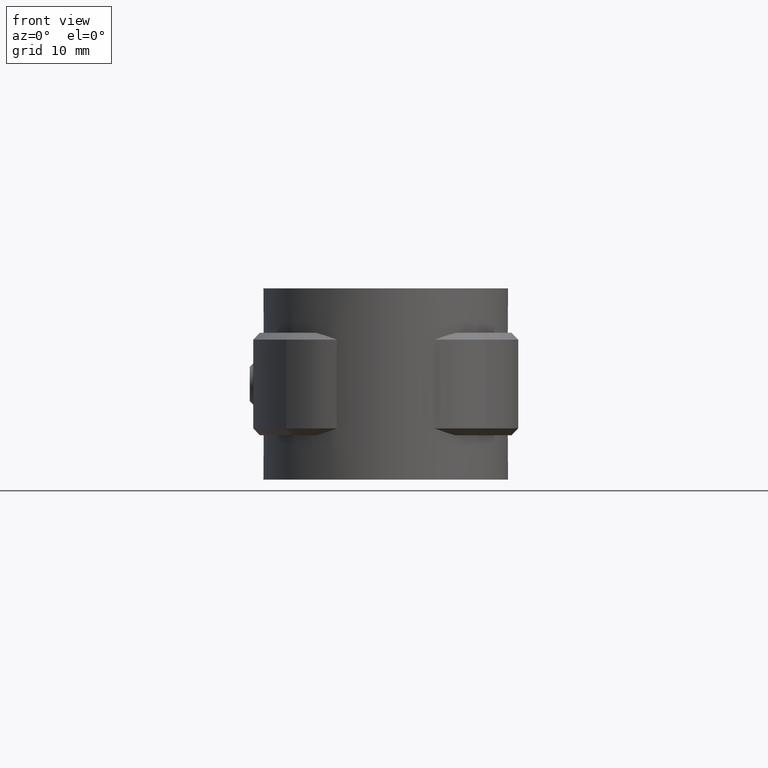
[diagram: clean part render]
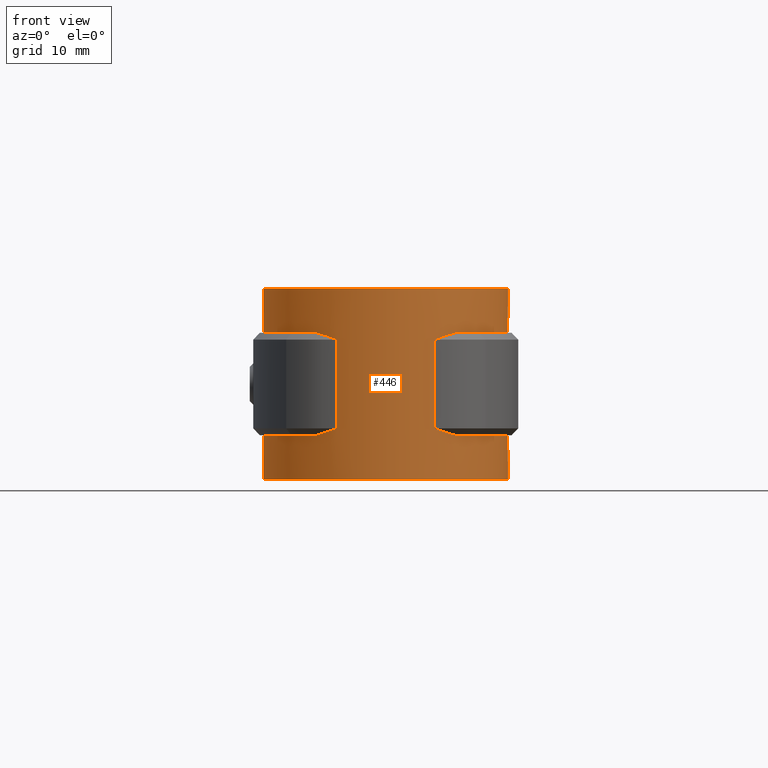
[diagram: same view with one face highlighted and labeled with its STEP entity id]
A machine part, front view. The second image highlights one B-rep face of the part: STEP entity #446.
In plain terms, the highlighted cylindrical surface (partial cylindrical patch) has radius 17.935 mm, axis along (0, 0, 1).
Its self-contained STEP definition (entity closure, byte-faithful):
#446 = ADVANCED_FACE( '', ( #862 ), #863, .T. );
#862 = FACE_OUTER_BOUND( '', #1847, .T. );
#863 = CYLINDRICAL_SURFACE( '', #1848, 17.9350000000000 );
#1847 = EDGE_LOOP( '', ( #3958, #3959, #3960, #3961, #3962, #3963, #3964, #3965, #3966, #3967, #3968, #3969, #3970, #3971, #3972, #3973 ) );
#1848 = AXIS2_PLACEMENT_3D( '', #3974, #3975, #3976 );
#3958 = ORIENTED_EDGE( '', *, *, #6268, .F. );
#3959 = ORIENTED_EDGE( '', *, *, #6269, .T. );
#3960 = ORIENTED_EDGE( '', *, *, #6270, .T. );
#3961 = ORIENTED_EDGE( '', *, *, #6271, .T. );
#3962 = ORIENTED_EDGE( '', *, *, #6259, .T. );
#3963 = ORIENTED_EDGE( '', *, *, #6272, .T. );
#3964 = ORIENTED_EDGE( '', *, *, #6217, .T. );
#3965 = ORIENTED_EDGE( '', *, *, #6210, .F. );
#3966 = ORIENTED_EDGE( '', *, *, #6273, .T. );
#3967 = ORIENTED_EDGE( '', *, *, #6266, .T. );
#3968 = ORIENTED_EDGE( '', *, *, #6274, .T. );
#3969 = ORIENTED_EDGE( '', *, *, #6275, .T. );
#3970 = ORIENTED_EDGE( '', *, *, #6276, .F. );
#3971 = ORIENTED_EDGE( '', *, *, #6212, .F. );
#3972 = ORIENTED_EDGE( '', *, *, #6120, .F. );
#3973 = ORIENTED_EDGE( '', *, *, #6277, .T. );
#3974 = CARTESIAN_POINT( '', ( 0.000000000000000, 0.000000000000000, -26.5000000000000 ) );
#3975 = DIRECTION( '', ( 0.000000000000000, 0.000000000000000, 1.00000000000000 ) );
#3976 = DIRECTION( '', ( 0.000000000000000, -1.00000000000000, 0.000000000000000 ) );
#6120 = EDGE_CURVE( '', #7133, #7135, #7136, .T. );
#6210 = EDGE_CURVE( '', #7298, #7300, #7301, .F. );
#6212 = EDGE_CURVE( '', #7135, #7293, #7303, .F. );
#6217 = EDGE_CURVE( '', #7311, #7300, #7312, .T. );
#6259 = EDGE_CURVE( '', #7373, #7374, #7375, .T. );
#6266 = EDGE_CURVE( '', #7386, #7384, #7387, .T. );
#6268 = EDGE_CURVE( '', #7389, #7390, #7391, .T. );
#6269 = EDGE_CURVE( '', #7389, #7392, #7393, .T. );
#6270 = EDGE_CURVE( '', #7392, #7394, #7395, .F. );
#6271 = EDGE_CURVE( '', #7394, #7373, #7396, .T. );
#6272 = EDGE_CURVE( '', #7374, #7311, #7397, .F. );
#6273 = EDGE_CURVE( '', #7298, #7386, #7398, .T. );
#6274 = EDGE_CURVE( '', #7384, #7399, #7400, .T. );
#6275 = EDGE_CURVE( '', #7399, #7401, #7402, .T. );
#6276 = EDGE_CURVE( '', #7293, #7401, #7403, .T. );
#6277 = EDGE_CURVE( '', #7133, #7390, #7404, .F. );
#7133 = VERTEX_POINT( '', #9410 );
#7135 = VERTEX_POINT( '', #9413 );
#7136 = CIRCLE( '', #9414, 17.9350000000000 );
#7293 = VERTEX_POINT( '', #10200 );
#7298 = VERTEX_POINT( '', #10212 );
#7300 = VERTEX_POINT( '', #10215 );
#7301 = LINE( '', #10216, #10217 );
#7303 = LINE( '', #10220, #10221 );
#7311 = VERTEX_POINT( '', #10231 );
#7312 = CIRCLE( '', #10232, 17.9350000000000 );
#7373 = VERTEX_POINT( '', #10408 );
#7374 = VERTEX_POINT( '', #10409 );
#7375 = CIRCLE( '', #10410, 17.9350000000000 );
#7384 = VERTEX_POINT( '', #10421 );
#7386 = VERTEX_POINT( '', #10423 );
#7387 = B_SPLINE_CURVE_WITH_KNOTS( '', 3, ( #10424, #10425, #10426, #10427 ), .UNSPECIFIED., .F., .F., ( 4, 4 ), ( 2.90404315920742E-017, 0.00357650561878173 ), .UNSPECIFIED. );
#7389 = VERTEX_POINT( '', #10429 );
#7390 = VERTEX_POINT( '', #10430 );
#7391 = CIRCLE( '', #10431, 17.9350000000000 );
#7392 = VERTEX_POINT( '', #10432 );
#7393 = B_SPLINE_CURVE_WITH_KNOTS( '', 3, ( #10433, #10434, #10435, #10436 ), .UNSPECIFIED., .F., .F., ( 4, 4 ), ( 2.88193908422263E-017, 0.00357650561878173 ), .UNSPECIFIED. );
#7394 = VERTEX_POINT( '', #10437 );
#7395 = LINE( '', #10438, #10439 );
#7396 = B_SPLINE_CURVE_WITH_KNOTS( '', 3, ( #10440, #10441, #10442, #10443 ), .UNSPECIFIED., .F., .F., ( 4, 4 ), ( 8.18267427085042E-018, 0.00357650561878174 ), .UNSPECIFIED. );
#7397 = LINE( '', #10444, #10445 );
#7398 = CIRCLE( '', #10446, 17.9350000000000 );
#7399 = VERTEX_POINT( '', #10447 );
#7400 = LINE( '', #10448, #10449 );
#7401 = VERTEX_POINT( '', #10450 );
#7402 = B_SPLINE_CURVE_WITH_KNOTS( '', 3, ( #10451, #10452, #10453, #10454 ), .UNSPECIFIED., .F., .F., ( 4, 4 ), ( 7.80625564189563E-018, 0.00357650561878174 ), .UNSPECIFIED. );
#7403 = CIRCLE( '', #10455, 17.9350000000000 );
#7404 = LINE( '', #10456, #10457 );
#9410 = CARTESIAN_POINT( '', ( 6.10000000000001, 16.8657708095420, -26.5000000000000 ) );
#9413 = CARTESIAN_POINT( '', ( -6.10000000000000, 16.8657708095420, -26.5000000000000 ) );
#9414 = AXIS2_PLACEMENT_3D( '', #12145, #12146, #12147 );
#10200 = CARTESIAN_POINT( '', ( -6.10000000000000, 16.8657708095420, -20.0000000000000 ) );
#10212 = CARTESIAN_POINT( '', ( -6.10000000000000, 16.8657708095420, -5.00000000000000 ) );
#10215 = CARTESIAN_POINT( '', ( -6.10000000000000, 16.8657708095420, 1.50000000000000 ) );
#10216 = CARTESIAN_POINT( '', ( -6.10000000000000, 16.8657708095420, -26.5000000000000 ) );
#10217 = VECTOR( '', #12231, 1000.00000000000 );
#10220 = CARTESIAN_POINT( '', ( -6.10000000000000, 16.8657708095420, -26.5000000000000 ) );
#10221 = VECTOR( '', #12233, 1000.00000000000 );
#10231 = CARTESIAN_POINT( '', ( 6.10000000000001, 16.8657708095420, 1.50000000000000 ) );
#10232 = AXIS2_PLACEMENT_3D( '', #12242, #12243, #12244 );
#10408 = CARTESIAN_POINT( '', ( 10.1735648996629, -14.7703352105613, -5.00000000000000 ) );
#10409 = CARTESIAN_POINT( '', ( 6.10000000000001, 16.8657708095420, -5.00000000000000 ) );
#10410 = AXIS2_PLACEMENT_3D( '', #12298, #12299, #12300 );
#10421 = CARTESIAN_POINT( '', ( -7.17213575351335, -16.4385125158323, -5.99999999999999 ) );
#10423 = CARTESIAN_POINT( '', ( -10.1735648996629, -14.7703352105613, -4.99999999999999 ) );
#10424 = CARTESIAN_POINT( '', ( -10.1735648996629, -14.7703352105613, -4.99999999999999 ) );
#10425 = CARTESIAN_POINT( '', ( -9.20888036943034, -15.4347941098424, -5.25992995844680 ) );
#10426 = CARTESIAN_POINT( '', ( -8.20887606351091, -15.9861819149169, -5.60247274594915 ) );
#10427 = CARTESIAN_POINT( '', ( -7.17213575351334, -16.4385125158323, -6.00000000000000 ) );
#10429 = CARTESIAN_POINT( '', ( 10.1735648996629, -14.7703352105613, -20.0000000000000 ) );
#10430 = CARTESIAN_POINT( '', ( 6.10000000000001, 16.8657708095420, -20.0000000000000 ) );
#10431 = AXIS2_PLACEMENT_3D( '', #12318, #12319, #12320 );
#10432 = CARTESIAN_POINT( '', ( 7.17213575351335, -16.4385125158323, -19.0000000000000 ) );
#10433 = CARTESIAN_POINT( '', ( 10.1735648996629, -14.7703352105613, -20.0000000000000 ) );
#10434 = CARTESIAN_POINT( '', ( 9.20888036943034, -15.4347941098424, -19.7400700415532 ) );
#10435 = CARTESIAN_POINT( '', ( 8.20887606351091, -15.9861819149169, -19.3975272540509 ) );
#10436 = CARTESIAN_POINT( '', ( 7.17213575351334, -16.4385125158323, -19.0000000000000 ) );
#10437 = CARTESIAN_POINT( '', ( 7.17213575351335, -16.4385125158323, -6.00000000000000 ) );
#10438 = CARTESIAN_POINT( '', ( 7.17213575351335, -16.4385125158323, -1.81903103690928E-011 ) );
#10439 = VECTOR( '', #12321, 1000.00000000000 );
#10440 = CARTESIAN_POINT( '', ( 7.17213575351334, -16.4385125158323, -6.00000000000001 ) );
#10441 = CARTESIAN_POINT( '', ( 8.20887606351092, -15.9861819149169, -5.60247274594915 ) );
#10442 = CARTESIAN_POINT( '', ( 9.20888036943034, -15.4347941098424, -5.25992995844682 ) );
#10443 = CARTESIAN_POINT( '', ( 10.1735648996629, -14.7703352105613, -5.00000000000000 ) );
#10444 = CARTESIAN_POINT( '', ( 6.10000000000001, 16.8657708095420, -26.5000000000000 ) );
#10445 = VECTOR( '', #12322, 1000.00000000000 );
#10446 = AXIS2_PLACEMENT_3D( '', #12323, #12324, #12325 );
#10447 = CARTESIAN_POINT( '', ( -7.17213575351335, -16.4385125158323, -19.0000000000000 ) );
#10448 = CARTESIAN_POINT( '', ( -7.17213575351335, -16.4385125158323, -1.81903103690928E-011 ) );
#10449 = VECTOR( '', #12326, 1000.00000000000 );
#10450 = CARTESIAN_POINT( '', ( -10.1735648996629, -14.7703352105613, -20.0000000000000 ) );
#10451 = CARTESIAN_POINT( '', ( -7.17213575351334, -16.4385125158323, -19.0000000000000 ) );
#10452 = CARTESIAN_POINT( '', ( -8.20887606351092, -15.9861819149169, -19.3975272540509 ) );
#10453 = CARTESIAN_POINT( '', ( -9.20888036943034, -15.4347941098424, -19.7400700415532 ) );
#10454 = CARTESIAN_POINT( '', ( -10.1735648996629, -14.7703352105613, -20.0000000000000 ) );
#10455 = AXIS2_PLACEMENT_3D( '', #12327, #12328, #12329 );
#10456 = CARTESIAN_POINT( '', ( 6.10000000000001, 16.8657708095420, -26.5000000000000 ) );
#10457 = VECTOR( '', #12330, 1000.00000000000 );
#12145 = CARTESIAN_POINT( '', ( 0.000000000000000, 0.000000000000000, -26.5000000000000 ) );
#12146 = DIRECTION( '', ( 0.000000000000000, 0.000000000000000, -1.00000000000000 ) );
#12147 = DIRECTION( '', ( -1.00000000000000, 0.000000000000000, 0.000000000000000 ) );
#12231 = DIRECTION( '', ( 0.000000000000000, 0.000000000000000, -1.00000000000000 ) );
#12233 = DIRECTION( '', ( 0.000000000000000, 0.000000000000000, -1.00000000000000 ) );
#12242 = CARTESIAN_POINT( '', ( 0.000000000000000, 0.000000000000000, 1.50000000000000 ) );
#12243 = DIRECTION( '', ( 0.000000000000000, 0.000000000000000, -1.00000000000000 ) );
#12244 = DIRECTION( '', ( -1.00000000000000, 0.000000000000000, 0.000000000000000 ) );
#12298 = CARTESIAN_POINT( '', ( 0.000000000000000, 0.000000000000000, -5.00000000000000 ) );
#12299 = DIRECTION( '', ( 0.000000000000000, 0.000000000000000, 1.00000000000000 ) );
#12300 = DIRECTION( '', ( 1.00000000000000, 0.000000000000000, 0.000000000000000 ) );
#12318 = CARTESIAN_POINT( '', ( 0.000000000000000, 0.000000000000000, -20.0000000000000 ) );
#12319 = DIRECTION( '', ( 0.000000000000000, 0.000000000000000, 1.00000000000000 ) );
#12320 = DIRECTION( '', ( 1.00000000000000, 0.000000000000000, 0.000000000000000 ) );
#12321 = DIRECTION( '', ( 0.000000000000000, 0.000000000000000, -1.00000000000000 ) );
#12322 = DIRECTION( '', ( 0.000000000000000, 0.000000000000000, -1.00000000000000 ) );
#12323 = CARTESIAN_POINT( '', ( 0.000000000000000, 0.000000000000000, -5.00000000000000 ) );
#12324 = DIRECTION( '', ( 0.000000000000000, 0.000000000000000, 1.00000000000000 ) );
#12325 = DIRECTION( '', ( 1.00000000000000, 0.000000000000000, 0.000000000000000 ) );
#12326 = DIRECTION( '', ( 0.000000000000000, 0.000000000000000, -1.00000000000000 ) );
#12327 = CARTESIAN_POINT( '', ( 0.000000000000000, 0.000000000000000, -20.0000000000000 ) );
#12328 = DIRECTION( '', ( 0.000000000000000, 0.000000000000000, 1.00000000000000 ) );
#12329 = DIRECTION( '', ( 1.00000000000000, 0.000000000000000, 0.000000000000000 ) );
#12330 = DIRECTION( '', ( 0.000000000000000, 0.000000000000000, -1.00000000000000 ) );